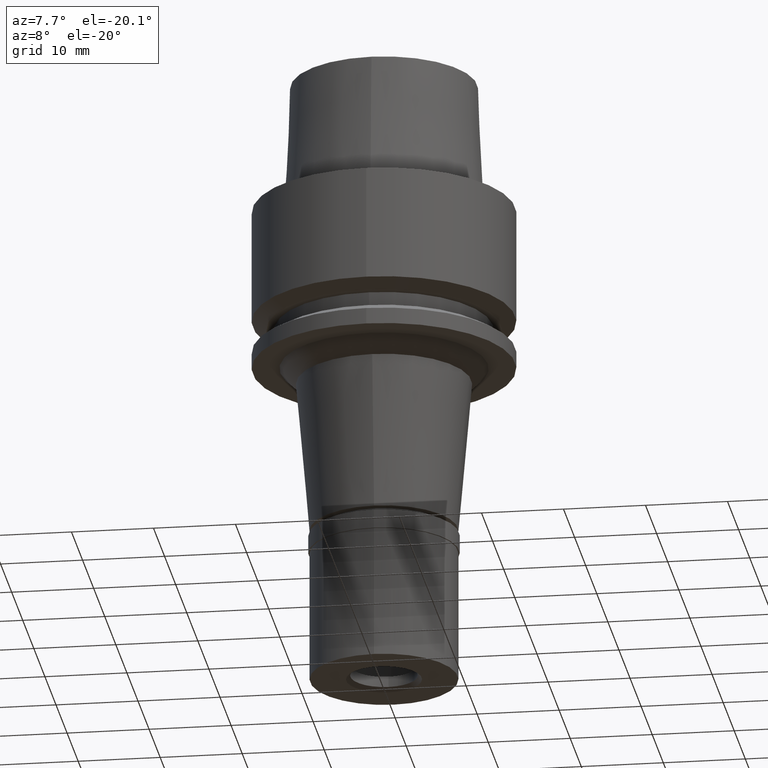
[diagram: clean part render]
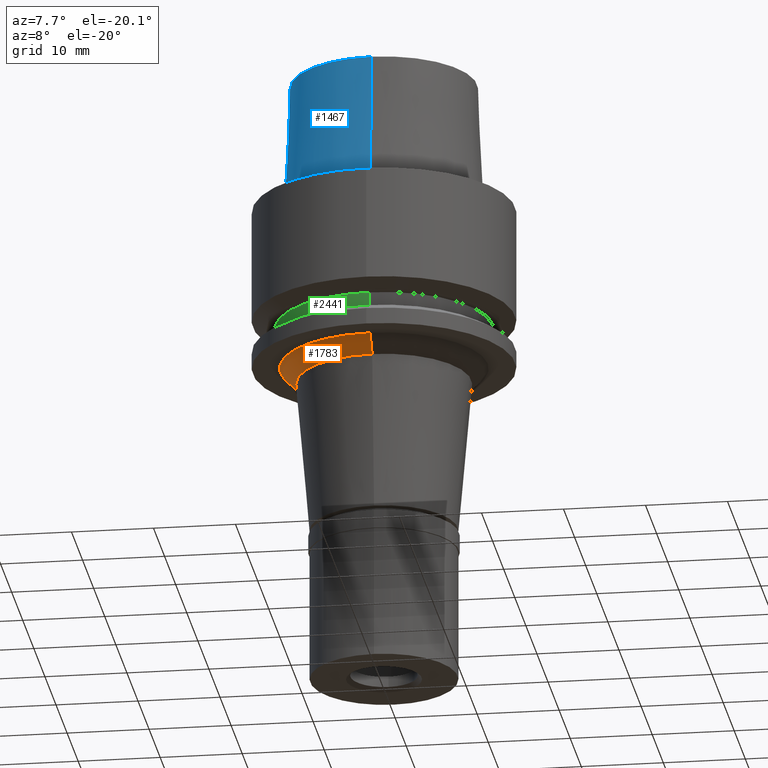
[diagram: same view with three faces highlighted in distinct colors, each labeled with its STEP entity id]
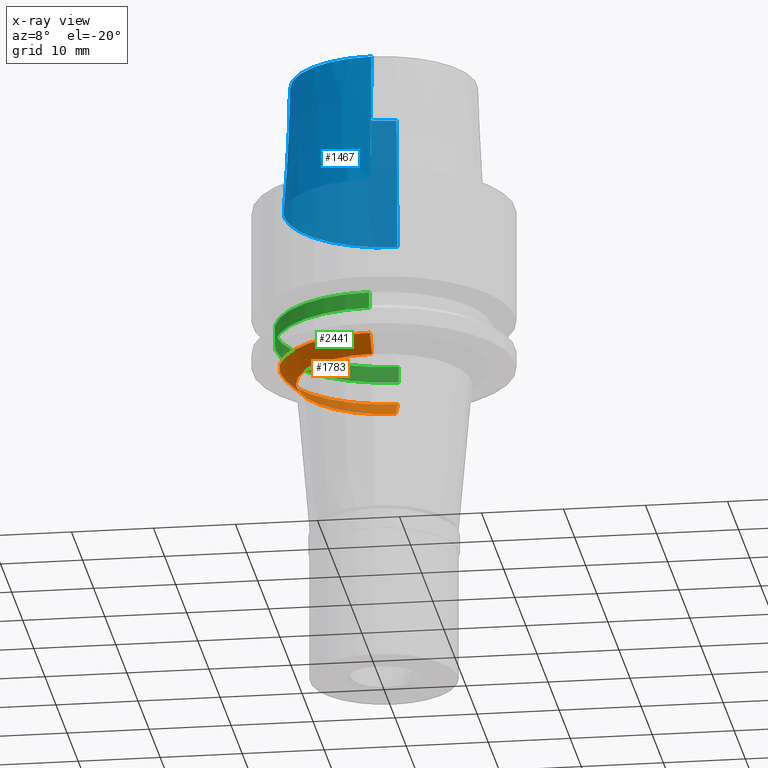
[diagram: x-ray of the same camera — body ghosted, the three highlighted faces saturated]
A machine part, auxiliary view with three faces highlighted in distinct colors.
The next image is the same camera in x-ray (body ghosted, the three faces saturated) — at least one of them is partly hidden behind the body in this view.
Their STEP definitions:

[orange] entity #1783 — the highlighted conical surface has half-angle 45 deg.
#16 = LINE ( 'NONE', #1944, #1064 ) ;
#75 = EDGE_CURVE ( 'NONE', #861, #2086, #16, .T. ) ;
#78 = DIRECTION ( 'NONE',  ( 0.0000000000000000000, -1.000000000000000000, 0.0000000000000000000 ) ) ;
#243 = VECTOR ( 'NONE', #469, 1000.000000000000000 ) ;
#252 = LINE ( 'NONE', #686, #243 ) ;
#312 = DIRECTION ( 'NONE',  ( 0.0000000000000000000, 0.0000000000000000000, -1.000000000000000000 ) ) ;
#416 = AXIS2_PLACEMENT_3D ( 'NONE', #616, #1449, #2280 ) ;
#450 = VERTEX_POINT ( 'NONE', #1189 ) ;
#469 = DIRECTION ( 'NONE',  ( 0.0000000000000000000, -0.7071067811864980568, -0.7071067811865969777 ) ) ;
#574 = EDGE_LOOP ( 'NONE', ( #1037, #1218, #2585, #1193 ) ) ;
#616 = CARTESIAN_POINT ( 'NONE',  ( 0.0000000000000000000, 0.0000000000000000000, -21.00000000000000000 ) ) ;
#686 = CARTESIAN_POINT ( 'NONE',  ( 0.0000000000000000000, 12.65353574063999886, -20.00000000000000000 ) ) ;
#861 = VERTEX_POINT ( 'NONE', #1212 ) ;
#877 = DIRECTION ( 'NONE',  ( 0.0000000000000000000, 0.7071067811864980568, -0.7071067811865969777 ) ) ;
#1037 = ORIENTED_EDGE ( 'NONE', *, *, #2127, .F. ) ;
#1064 = VECTOR ( 'NONE', #877, 1000.000000000000000 ) ;
#1070 = AXIS2_PLACEMENT_3D ( 'NONE', #2385, #312, #78 ) ;
#1172 = DIRECTION ( 'NONE',  ( 0.0000000000000000000, 0.0000000000000000000, -1.000000000000000000 ) ) ;
#1189 = CARTESIAN_POINT ( 'NONE',  ( 0.0000000000000000000, 10.65353574063999886, -22.00000000000000000 ) ) ;
#1193 = ORIENTED_EDGE ( 'NONE', *, *, #1949, .T. ) ;
#1212 = CARTESIAN_POINT ( 'NONE',  ( 0.0000000000000000000, -12.65353574063999886, -20.00000000000000000 ) ) ;
#1216 = EDGE_CURVE ( 'NONE', #861, #1735, #1758, .T. ) ;
#1218 = ORIENTED_EDGE ( 'NONE', *, *, #75, .F. ) ;
#1449 = DIRECTION ( 'NONE',  ( 0.0000000000000000000, 0.0000000000000000000, 1.000000000000000000 ) ) ;
#1562 = CARTESIAN_POINT ( 'NONE',  ( 0.0000000000000000000, 12.65353574063999886, -20.00000000000000000 ) ) ;
#1735 = VERTEX_POINT ( 'NONE', #1562 ) ;
#1758 = CIRCLE ( 'NONE', #1070, 12.65353574063999886 ) ;
#1783 = ADVANCED_FACE ( 'NONE', ( #1813 ), #1857, .T. ) ;
#1791 = CARTESIAN_POINT ( 'NONE',  ( 0.0000000000000000000, 0.0000000000000000000, -22.00000000000000000 ) ) ;
#1813 = FACE_OUTER_BOUND ( 'NONE', #574, .T. ) ;
#1857 = CONICAL_SURFACE ( 'NONE', #416, 11.65353574064000064, 0.7853981633972997312 ) ;
#1904 = AXIS2_PLACEMENT_3D ( 'NONE', #1791, #1172, #2179 ) ;
#1944 = CARTESIAN_POINT ( 'NONE',  ( 0.0000000000000000000, -12.65353574063999886, -20.00000000000000000 ) ) ;
#1949 = EDGE_CURVE ( 'NONE', #1735, #450, #252, .T. ) ;
#2086 = VERTEX_POINT ( 'NONE', #2532 ) ;
#2127 = EDGE_CURVE ( 'NONE', #2086, #450, #2468, .T. ) ;
#2179 = DIRECTION ( 'NONE',  ( 0.0000000000000000000, -1.000000000000000000, 0.0000000000000000000 ) ) ;
#2280 = DIRECTION ( 'NONE',  ( 0.0000000000000000000, 1.000000000000000000, 0.0000000000000000000 ) ) ;
#2385 = CARTESIAN_POINT ( 'NONE',  ( 0.0000000000000000000, 0.0000000000000000000, -20.00000000000000000 ) ) ;
#2468 = CIRCLE ( 'NONE', #1904, 10.65353574063999886 ) ;
#2532 = CARTESIAN_POINT ( 'NONE',  ( 0.0000000000000000000, -10.65353574063999886, -22.00000000000000000 ) ) ;
#2585 = ORIENTED_EDGE ( 'NONE', *, *, #1216, .T. ) ;

[blue] entity #1467 — the highlighted conical surface has half-angle 2.862 deg.
#6 = DIRECTION ( 'NONE',  ( 0.0000000000000000000, -1.000000000000000000, 0.0000000000000000000 ) ) ;
#152 = VECTOR ( 'NONE', #1848, 999.9999999999998863 ) ;
#256 = EDGE_CURVE ( 'NONE', #1072, #1351, #798, .T. ) ;
#315 = ORIENTED_EDGE ( 'NONE', *, *, #2224, .F. ) ;
#438 = DIRECTION ( 'NONE',  ( 0.0000000000000000000, 0.0000000000000000000, 1.000000000000000000 ) ) ;
#687 = CARTESIAN_POINT ( 'NONE',  ( 0.0000000000000000000, -11.36000117044000035, 16.00000000000000000 ) ) ;
#766 = AXIS2_PLACEMENT_3D ( 'NONE', #886, #1043, #6 ) ;
#798 = CIRCLE ( 'NONE', #1410, 12.15999970738999991 ) ;
#854 = DIRECTION ( 'NONE',  ( 0.0000000000000000000, 0.0000000000000000000, -1.000000000000000000 ) ) ;
#886 = CARTESIAN_POINT ( 'NONE',  ( 0.0000000000000000000, 0.0000000000000000000, 8.000000000000000000 ) ) ;
#921 = ORIENTED_EDGE ( 'NONE', *, *, #256, .T. ) ;
#956 = EDGE_CURVE ( 'NONE', #1644, #1072, #1057, .T. ) ;
#962 = LINE ( 'NONE', #687, #1861 ) ;
#1007 = CARTESIAN_POINT ( 'NONE',  ( 0.0000000000000000000, 11.36000117044000035, 16.00000000000000000 ) ) ;
#1031 = CARTESIAN_POINT ( 'NONE',  ( 0.0000000000000000000, 12.15999970738999991, 3.907985046680999726E-14 ) ) ;
#1043 = DIRECTION ( 'NONE',  ( 0.0000000000000000000, 0.0000000000000000000, -1.000000000000000000 ) ) ;
#1057 = LINE ( 'NONE', #1007, #152 ) ;
#1072 = VERTEX_POINT ( 'NONE', #1031 ) ;
#1284 = CARTESIAN_POINT ( 'NONE',  ( 0.0000000000000000000, 0.0000000000000000000, 16.00000000000000000 ) ) ;
#1312 = EDGE_LOOP ( 'NONE', ( #921, #315, #1324, #1995 ) ) ;
#1324 = ORIENTED_EDGE ( 'NONE', *, *, #2576, .T. ) ;
#1351 = VERTEX_POINT ( 'NONE', #1438 ) ;
#1410 = AXIS2_PLACEMENT_3D ( 'NONE', #2118, #438, #1929 ) ;
#1438 = CARTESIAN_POINT ( 'NONE',  ( 0.0000000000000000000, -12.15999970738999991, 1.989519660127999812E-13 ) ) ;
#1467 = ADVANCED_FACE ( 'NONE', ( #2153 ), #2332, .T. ) ;
#1516 = DIRECTION ( 'NONE',  ( 0.0000000000000000000, -0.04993752584492938684, -0.9987523434327887362 ) ) ;
#1644 = VERTEX_POINT ( 'NONE', #1959 ) ;
#1848 = DIRECTION ( 'NONE',  ( 0.0000000000000000000, 0.04993752584492938684, -0.9987523434327887362 ) ) ;
#1861 = VECTOR ( 'NONE', #1516, 999.9999999999998863 ) ;
#1929 = DIRECTION ( 'NONE',  ( 0.0000000000000000000, 1.000000000000000000, 0.0000000000000000000 ) ) ;
#1959 = CARTESIAN_POINT ( 'NONE',  ( 0.0000000000000000000, 11.36000117044000035, 16.00000000000000000 ) ) ;
#1995 = ORIENTED_EDGE ( 'NONE', *, *, #956, .T. ) ;
#2118 = CARTESIAN_POINT ( 'NONE',  ( 0.0000000000000000000, 0.0000000000000000000, 1.989519660127999812E-13 ) ) ;
#2122 = DIRECTION ( 'NONE',  ( 0.0000000000000000000, -1.000000000000000000, 0.0000000000000000000 ) ) ;
#2153 = FACE_OUTER_BOUND ( 'NONE', #1312, .T. ) ;
#2167 = CARTESIAN_POINT ( 'NONE',  ( 0.0000000000000000000, -11.36000117044000035, 16.00000000000000000 ) ) ;
#2212 = VERTEX_POINT ( 'NONE', #2167 ) ;
#2224 = EDGE_CURVE ( 'NONE', #2212, #1351, #962, .T. ) ;
#2332 = CONICAL_SURFACE ( 'NONE', #766, 11.76000043892000058, 0.04995830450907576964 ) ;
#2378 = CIRCLE ( 'NONE', #2475, 11.36000117044999946 ) ;
#2475 = AXIS2_PLACEMENT_3D ( 'NONE', #1284, #854, #2122 ) ;
#2576 = EDGE_CURVE ( 'NONE', #2212, #1644, #2378, .T. ) ;

[green] entity #2441 — the highlighted cylindrical surface (partial cylindrical patch) has radius 13.25 mm, axis along (0, 0, -1).
#37 = ORIENTED_EDGE ( 'NONE', *, *, #247, .F. ) ;
#247 = EDGE_CURVE ( 'NONE', #564, #466, #2518, .T. ) ;
#294 = CARTESIAN_POINT ( 'NONE',  ( 0.0000000000000000000, 0.0000000000000000000, -17.00000000000000000 ) ) ;
#337 = EDGE_CURVE ( 'NONE', #564, #366, #1196, .T. ) ;
#366 = VERTEX_POINT ( 'NONE', #1963 ) ;
#421 = ORIENTED_EDGE ( 'NONE', *, *, #1267, .T. ) ;
#449 = CARTESIAN_POINT ( 'NONE',  ( 0.0000000000000000000, 0.0000000000000000000, 19.57000000000000028 ) ) ;
#465 = DIRECTION ( 'NONE',  ( 0.0000000000000000000, -1.000000000000000000, 0.0000000000000000000 ) ) ;
#466 = VERTEX_POINT ( 'NONE', #762 ) ;
#510 = CARTESIAN_POINT ( 'NONE',  ( 0.0000000000000000000, 13.25000000000000000, -15.00000000000000000 ) ) ;
#527 = CARTESIAN_POINT ( 'NONE',  ( 0.0000000000000000000, 0.0000000000000000000, -15.00000000000000000 ) ) ;
#531 = VERTEX_POINT ( 'NONE', #2561 ) ;
#545 = DIRECTION ( 'NONE',  ( 0.0000000000000000000, 0.0000000000000000000, -1.000000000000000000 ) ) ;
#554 = AXIS2_PLACEMENT_3D ( 'NONE', #449, #1682, #465 ) ;
#564 = VERTEX_POINT ( 'NONE', #1661 ) ;
#762 = CARTESIAN_POINT ( 'NONE',  ( 0.0000000000000000000, -13.25000000000000000, -17.00000000000000000 ) ) ;
#848 = VECTOR ( 'NONE', #2132, 1000.000000000000000 ) ;
#980 = CIRCLE ( 'NONE', #1415, 13.25000000000000000 ) ;
#1130 = DIRECTION ( 'NONE',  ( 0.0000000000000000000, 1.000000000000000000, 0.0000000000000000000 ) ) ;
#1196 = CIRCLE ( 'NONE', #1321, 13.25000000000000000 ) ;
#1267 = EDGE_CURVE ( 'NONE', #531, #466, #980, .T. ) ;
#1305 = EDGE_CURVE ( 'NONE', #366, #531, #2583, .T. ) ;
#1321 = AXIS2_PLACEMENT_3D ( 'NONE', #527, #545, #1377 ) ;
#1366 = DIRECTION ( 'NONE',  ( 0.0000000000000000000, 0.0000000000000000000, -1.000000000000000000 ) ) ;
#1377 = DIRECTION ( 'NONE',  ( 0.0000000000000000000, -1.000000000000000000, 0.0000000000000000000 ) ) ;
#1415 = AXIS2_PLACEMENT_3D ( 'NONE', #294, #1544, #1130 ) ;
#1525 = ORIENTED_EDGE ( 'NONE', *, *, #337, .T. ) ;
#1544 = DIRECTION ( 'NONE',  ( 0.0000000000000000000, 0.0000000000000000000, 1.000000000000000000 ) ) ;
#1661 = CARTESIAN_POINT ( 'NONE',  ( 0.0000000000000000000, -13.25000000000000000, -15.00000000000000000 ) ) ;
#1682 = DIRECTION ( 'NONE',  ( 0.0000000000000000000, 0.0000000000000000000, -1.000000000000000000 ) ) ;
#1843 = FACE_OUTER_BOUND ( 'NONE', #2181, .T. ) ;
#1963 = CARTESIAN_POINT ( 'NONE',  ( 0.0000000000000000000, 13.25000000000000000, -15.00000000000000000 ) ) ;
#2132 = DIRECTION ( 'NONE',  ( 0.0000000000000000000, 0.0000000000000000000, -1.000000000000000000 ) ) ;
#2181 = EDGE_LOOP ( 'NONE', ( #421, #37, #1525, #2497 ) ) ;
#2423 = VECTOR ( 'NONE', #1366, 1000.000000000000000 ) ;
#2441 = ADVANCED_FACE ( 'NONE', ( #1843 ), #2638, .T. ) ;
#2497 = ORIENTED_EDGE ( 'NONE', *, *, #1305, .T. ) ;
#2500 = CARTESIAN_POINT ( 'NONE',  ( 0.0000000000000000000, -13.25000000000000000, -15.00000000000000000 ) ) ;
#2518 = LINE ( 'NONE', #2500, #848 ) ;
#2561 = CARTESIAN_POINT ( 'NONE',  ( 0.0000000000000000000, 13.25000000000000000, -17.00000000000000000 ) ) ;
#2583 = LINE ( 'NONE', #510, #2423 ) ;
#2638 = CYLINDRICAL_SURFACE ( 'NONE', #554, 13.25000000000000000 ) ;